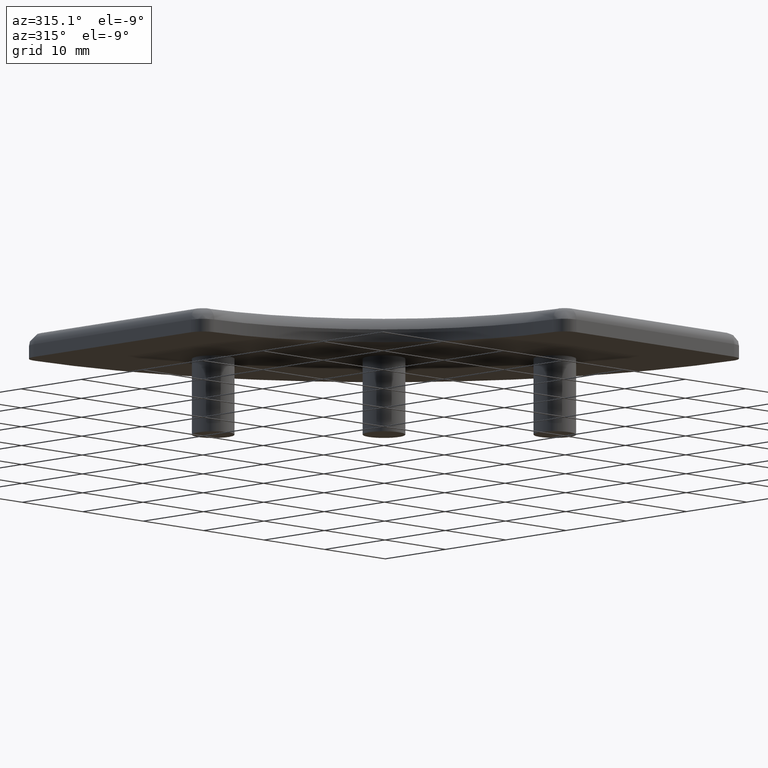
[diagram: clean part render]
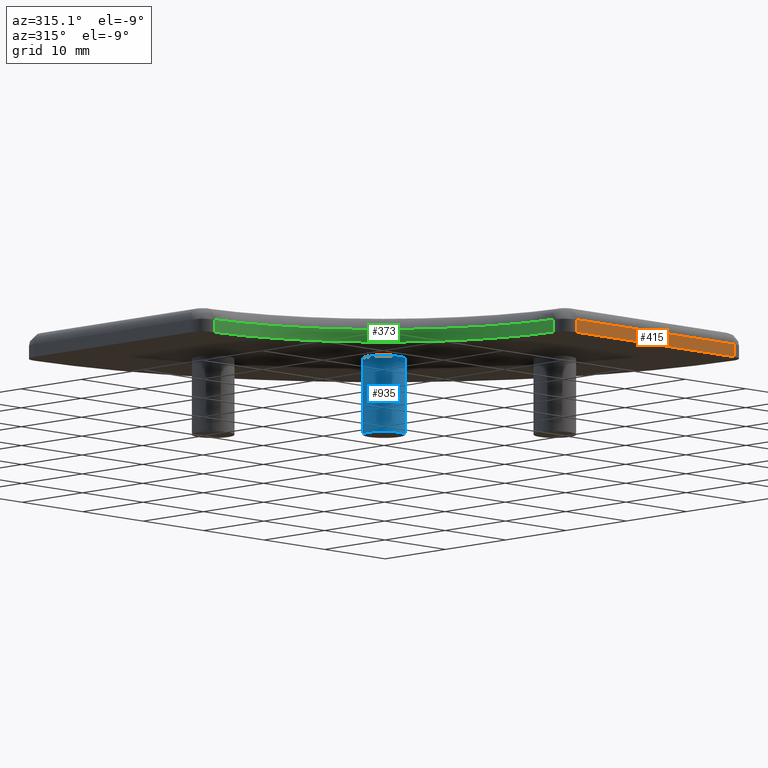
[diagram: same view with three faces highlighted in distinct colors, each labeled with its STEP entity id]
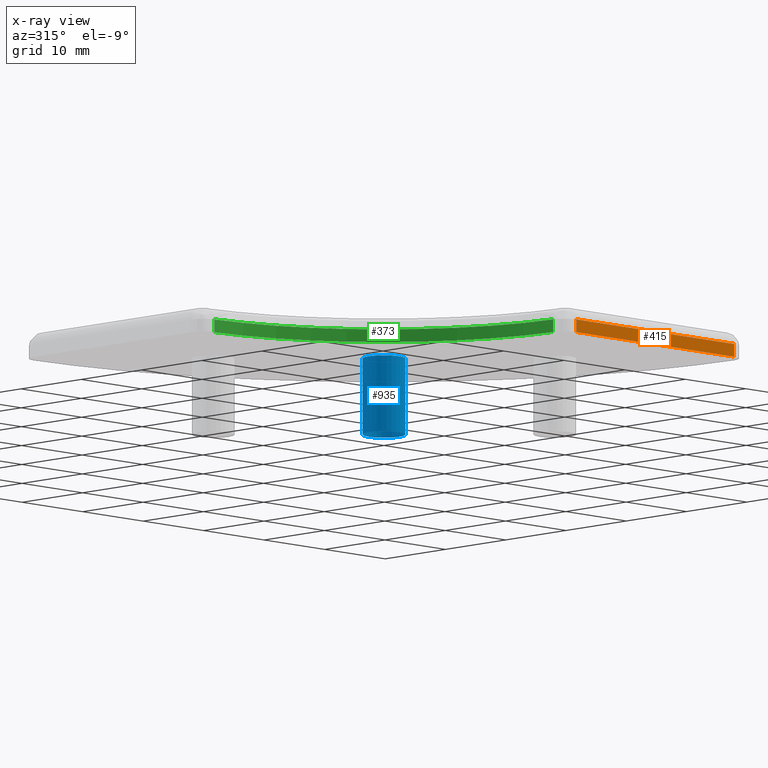
[diagram: x-ray of the same camera — body ghosted, the three highlighted faces saturated]
A machine part, auxiliary view with three faces highlighted in distinct colors.
The next image is the same camera in x-ray (body ghosted, the three faces saturated) — at least one of them is partly hidden behind the body in this view.
Their STEP definitions:

[orange] entity #415 — the highlighted planar face has unit normal (0, -1, 0).
#7=CARTESIAN_POINT('',(27.983366097920932,-29.980268532271502,0.0));
#8=VERTEX_POINT('',#7);
#18=CARTESIAN_POINT('',(1.954065934955320,-29.980268532271502,0.0));
#19=VERTEX_POINT('',#18);
#20=CARTESIAN_POINT('',(1.954065934955320,-29.980268532271502,0.0));
#21=DIRECTION('',(1.0,0.0,0.0));
#22=VECTOR('',#21,26.029300162965612);
#23=LINE('',#20,#22);
#24=EDGE_CURVE('',#19,#8,#23,.T.);
#231=CARTESIAN_POINT('',(27.983366097920932,-29.980268532271502,1.500000000000000));
#232=VERTEX_POINT('',#231);
#240=CARTESIAN_POINT('',(27.983366097920932,-29.980268532271502,0.0));
#241=DIRECTION('',(0.0,0.0,1.0));
#242=VECTOR('',#241,1.500000000000000);
#243=LINE('',#240,#242);
#244=EDGE_CURVE('',#8,#232,#243,.T.);
#380=CARTESIAN_POINT('',(1.954065934955320,-29.980268532271502,1.500000000000000));
#381=VERTEX_POINT('',#380);
#382=CARTESIAN_POINT('',(1.954065934955320,-29.980268532271502,0.0));
#383=DIRECTION('',(0.0,0.0,1.0));
#384=VECTOR('',#383,1.500000000000000);
#385=LINE('',#382,#384);
#386=EDGE_CURVE('',#19,#381,#385,.T.);
#399=CARTESIAN_POINT('',(1.954065934955320,-29.980268532271502,0.0));
#400=DIRECTION('',(0.0,-1.0,0.0));
#401=DIRECTION('',(1.0,0.0,0.0));
#402=AXIS2_PLACEMENT_3D('',#399,#400,#401);
#403=PLANE('',#402);
#404=ORIENTED_EDGE('',*,*,#24,.T.);
#405=ORIENTED_EDGE('',*,*,#244,.T.);
#406=CARTESIAN_POINT('',(1.954065934955320,-29.980268532271502,1.500000000000000));
#407=DIRECTION('',(1.0,0.0,0.0));
#408=VECTOR('',#407,26.029300162965612);
#409=LINE('',#406,#408);
#410=EDGE_CURVE('',#381,#232,#409,.T.);
#411=ORIENTED_EDGE('',*,*,#410,.F.);
#412=ORIENTED_EDGE('',*,*,#386,.F.);
#413=EDGE_LOOP('',(#404,#405,#411,#412));
#414=FACE_OUTER_BOUND('',#413,.T.);
#415=ADVANCED_FACE('',(#414),#403,.T.);

[blue] entity #935 — the highlighted cylindrical surface (bore or boss wall) has radius 2.5 mm, axis along (0, 0, -1).
#79=CARTESIAN_POINT('',(1.767766952966369,-1.767766952966369,0.0));
#80=VERTEX_POINT('',#79);
#81=CARTESIAN_POINT('',(-1.767766952966369,1.767766952966369,0.0));
#82=VERTEX_POINT('',#81);
#83=CARTESIAN_POINT('',(0.0,0.0,0.0));
#84=DIRECTION('',(0.0,0.0,-1.0));
#85=DIRECTION('',(-0.707106781186548,0.707106781186547,0.0));
#86=AXIS2_PLACEMENT_3D('',#83,#84,#85);
#87=CIRCLE('',#86,2.500000000000000);
#88=EDGE_CURVE('',#80,#82,#87,.T.);
#90=CARTESIAN_POINT('',(0.0,0.0,0.0));
#91=DIRECTION('',(0.0,0.0,-1.0));
#92=DIRECTION('',(-0.707106781186548,0.707106781186547,0.0));
#93=AXIS2_PLACEMENT_3D('',#90,#91,#92);
#94=CIRCLE('',#93,2.500000000000000);
#95=EDGE_CURVE('',#82,#80,#94,.T.);
#901=CARTESIAN_POINT('',(0.0,0.0,0.0));
#902=DIRECTION('',(0.0,0.0,-1.0));
#903=DIRECTION('',(-0.707106781186548,0.707106781186547,0.0));
#904=AXIS2_PLACEMENT_3D('',#901,#902,#903);
#905=CYLINDRICAL_SURFACE('',#904,2.500000000000000);
#906=CARTESIAN_POINT('',(1.767766952966369,-1.767766952966369,-9.0));
#907=VERTEX_POINT('',#906);
#908=CARTESIAN_POINT('',(-1.767766952966369,1.767766952966369,-9.0));
#909=VERTEX_POINT('',#908);
#910=CARTESIAN_POINT('',(0.0,0.0,-9.0));
#911=DIRECTION('',(0.0,0.0,-1.0));
#912=DIRECTION('',(-0.707106781186548,0.707106781186547,0.0));
#913=AXIS2_PLACEMENT_3D('',#910,#911,#912);
#914=CIRCLE('',#913,2.500000000000000);
#915=EDGE_CURVE('',#907,#909,#914,.T.);
#916=ORIENTED_EDGE('',*,*,#915,.F.);
#917=CARTESIAN_POINT('',(0.0,0.0,-9.0));
#918=DIRECTION('',(0.0,0.0,-1.0));
#919=DIRECTION('',(-0.707106781186548,0.707106781186547,0.0));
#920=AXIS2_PLACEMENT_3D('',#917,#918,#919);
#921=CIRCLE('',#920,2.500000000000000);
#922=EDGE_CURVE('',#909,#907,#921,.T.);
#923=ORIENTED_EDGE('',*,*,#922,.F.);
#924=CARTESIAN_POINT('',(-1.767766952966369,1.767766952966369,0.0));
#925=DIRECTION('',(0.0,0.0,-1.0));
#926=VECTOR('',#925,9.0);
#927=LINE('',#924,#926);
#928=EDGE_CURVE('',#82,#909,#927,.T.);
#929=ORIENTED_EDGE('',*,*,#928,.F.);
#930=ORIENTED_EDGE('',*,*,#95,.T.);
#931=ORIENTED_EDGE('',*,*,#88,.T.);
#932=ORIENTED_EDGE('',*,*,#928,.T.);
#933=EDGE_LOOP('',(#916,#923,#929,#930,#931,#932));
#934=FACE_OUTER_BOUND('',#933,.T.);
#935=ADVANCED_FACE('',(#934),#905,.T.);

[green] entity #373 — the highlighted cylindrical surface (partial cylindrical patch) has radius 30 mm, axis along (0, 0, -1).
#26=CARTESIAN_POINT('',(-0.042023575047292,-28.105275204323554,0.0));
#27=VERTEX_POINT('',#26);
#35=CARTESIAN_POINT('',(-28.108366232074818,-0.039026367158044,0.0));
#36=VERTEX_POINT('',#35);
#37=CARTESIAN_POINT('',(-29.983366225086488,-29.980375285104387,0.0));
#38=DIRECTION('',(0.0,0.0,-1.0));
#39=DIRECTION('',(0.998044755001306,0.062503336026028,0.0));
#40=AXIS2_PLACEMENT_3D('',#37,#38,#39);
#41=CIRCLE('',#40,30.000000000000007);
#42=EDGE_CURVE('',#36,#27,#41,.T.);
#330=CARTESIAN_POINT('',(-28.108366232074818,-0.039026367158044,1.500000000000000));
#331=VERTEX_POINT('',#330);
#332=CARTESIAN_POINT('',(-28.108366232074818,-0.039026367158044,0.0));
#333=DIRECTION('',(0.0,0.0,1.0));
#334=VECTOR('',#333,1.500000000000000);
#335=LINE('',#332,#334);
#336=EDGE_CURVE('',#36,#331,#335,.T.);
#349=CARTESIAN_POINT('',(-29.983366225086488,-29.980375285104387,0.0));
#350=DIRECTION('',(0.0,0.0,-1.0));
#351=DIRECTION('',(0.062499999767056,0.998044963931545,0.0));
#352=AXIS2_PLACEMENT_3D('',#349,#350,#351);
#353=CYLINDRICAL_SURFACE('',#352,30.000000000000007);
#354=ORIENTED_EDGE('',*,*,#42,.T.);
#355=CARTESIAN_POINT('',(-0.042023575047292,-28.105275204323554,1.500000000000000));
#356=VERTEX_POINT('',#355);
#357=CARTESIAN_POINT('',(-0.042023575047292,-28.105275204323554,0.0));
#358=DIRECTION('',(0.0,0.0,1.0));
#359=VECTOR('',#358,1.500000000000000);
#360=LINE('',#357,#359);
#361=EDGE_CURVE('',#27,#356,#360,.T.);
#362=ORIENTED_EDGE('',*,*,#361,.T.);
#363=CARTESIAN_POINT('',(-29.983366225086488,-29.980375285104387,1.500000000000000));
#364=DIRECTION('',(0.0,0.0,-1.0));
#365=DIRECTION('',(0.998044755001306,0.062503336026028,0.0));
#366=AXIS2_PLACEMENT_3D('',#363,#364,#365);
#367=CIRCLE('',#366,30.000000000000007);
#368=EDGE_CURVE('',#331,#356,#367,.T.);
#369=ORIENTED_EDGE('',*,*,#368,.F.);
#370=ORIENTED_EDGE('',*,*,#336,.F.);
#371=EDGE_LOOP('',(#354,#362,#369,#370));
#372=FACE_OUTER_BOUND('',#371,.T.);
#373=ADVANCED_FACE('',(#372),#353,.F.);